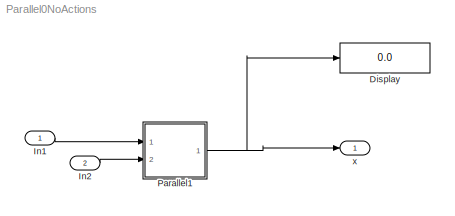
MODEL Parallel0NoActions
KIND model
BLOCK [Display] Display
  Decimation = 1
  Ports = [1]
  SID = 1
BLOCK [Inport] In1
  IconDisplay = Port number
  OutDataTypeStr = boolean
  SID = 9
BLOCK [Inport] In2
  IconDisplay = Port number
  OutDataTypeStr = boolean
  Port = 2
  SID = 10
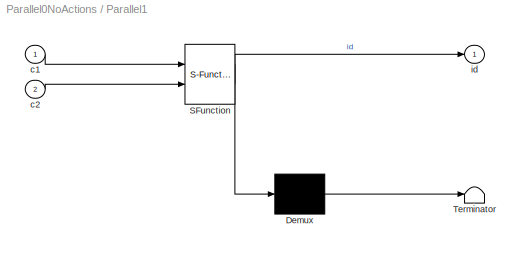
BLOCK [SubSystem] Parallel1
  ErrorFcn = Stateflow.Translate.translate
  PermitHierarchicalResolution = ExplicitOnly
  Ports = [2, 1]
  RequestExecContextInheritance = off
  SFBlockType = Chart
  SID = 2
  TreatAsAtomicUnit = on
  Variant = off
BLOCK [Demux] Parallel1/ Demux 
  Outputs = 1
  Ports = [1, 1]
  SID = 2::13
BLOCK [S-Function] Parallel1/ SFunction 
  EnableBusSupport = on
  FunctionName = sf_sfun
  PortCounts = [2 2]
  Ports = [2, 2]
  SFcnIsStateOwnerBlock = off
  SFunctionDeploymentMode = off
  SID = 2::12
  Tag = Stateflow S-Function Parallel0NoActions 1
BLOCK [Terminator] Parallel1/ Terminator 
  SID = 2::14
BLOCK [Inport] Parallel1/c1
  IconDisplay = Port number
  SID = 2::15
BLOCK [Inport] Parallel1/c2
  IconDisplay = Port number
  Port = 2
  SID = 2::16
BLOCK [Outport] Parallel1/id
  IconDisplay = Port number
  SID = 2::17
BLOCK [Outport] x
  IconDisplay = Port number
  SID = 3
LINE In1:1 -> Parallel1:1
LINE In2:1 -> Parallel1:2
LINE Parallel1/ Demux :1 -> Parallel1/ Terminator :1
LINE Parallel1/ SFunction :1 -> Parallel1/ Demux :1
LINE Parallel1/ SFunction :2 -> Parallel1/id:1
LINE Parallel1/c1:1 -> Parallel1/ SFunction :1
LINE Parallel1/c2:1 -> Parallel1/ SFunction :2
NET Parallel1:1 -> Display:1, x:1
note: NET lines group one-source signal fan-out (src -> all destinations, sorted); 1:1 wires keep LINE
CHART Parallel1 states=6 transitions=6
  STATE_LABEL 'N1/\\nen:id=1'
  STATE_LABEL 'N2/\\nen:id=2;'
  STATE_LABEL 'A/\\nen: id=21;'
  STATE_LABEL 'B/\\nen: id=22;'
  STATE_LABEL 'C/\\nen: id=23;'
  STATE_LABEL 'D/\\nen: id=24;'
